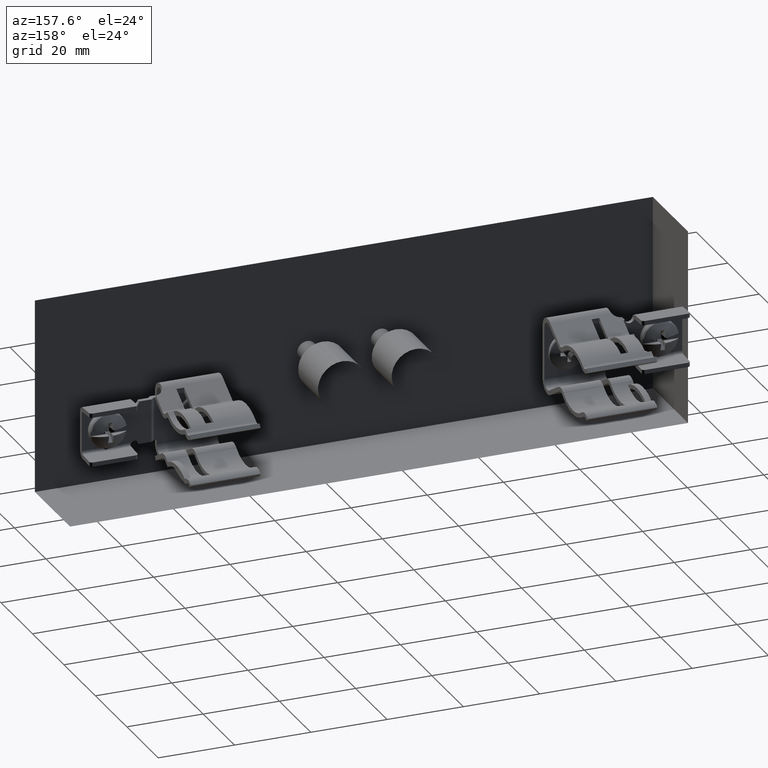
[diagram: clean part render]
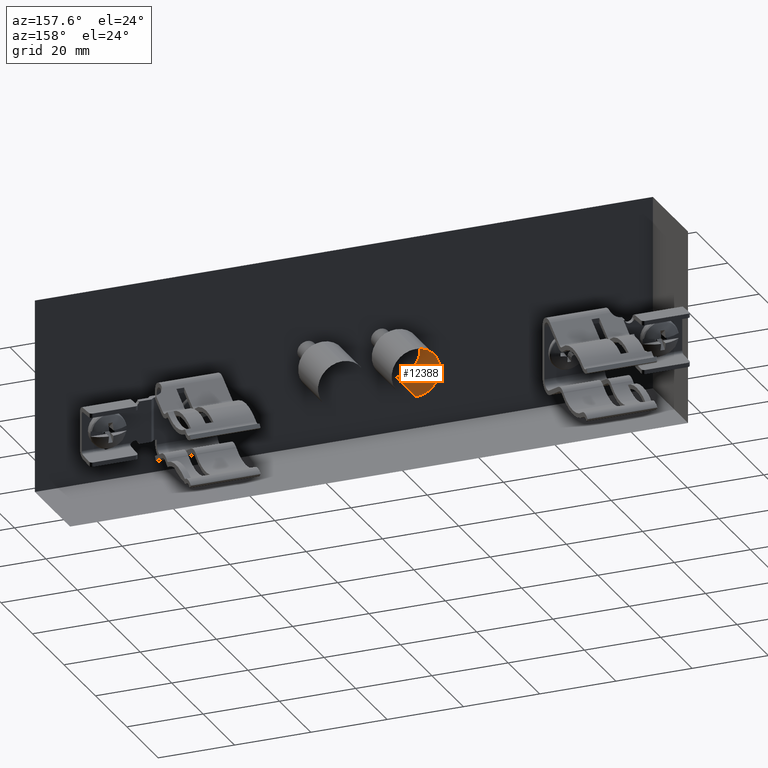
[diagram: same view with one face highlighted and labeled with its STEP entity id]
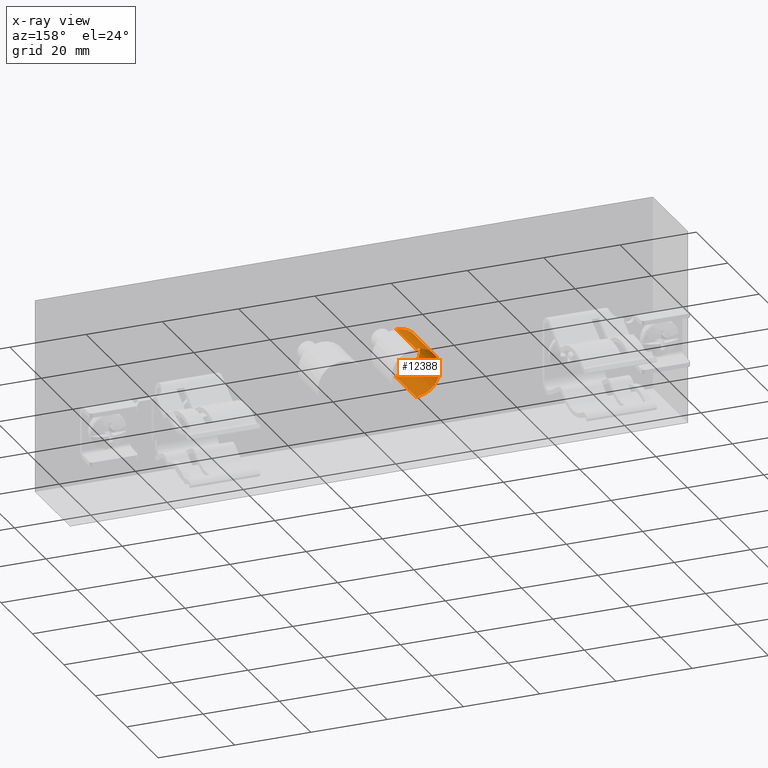
[diagram: x-ray of the same camera — body ghosted, the highlighted face saturated]
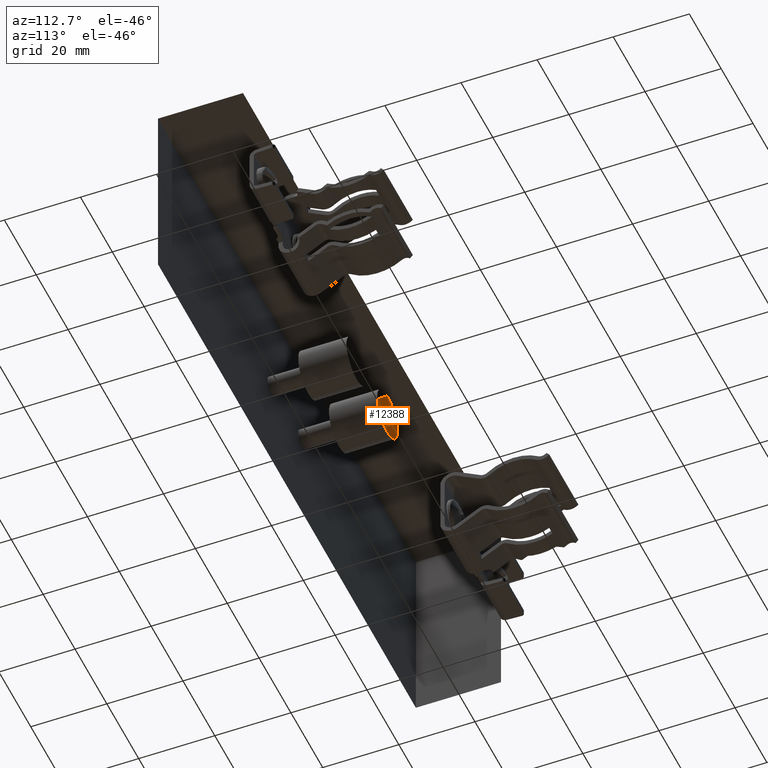
[diagram: same view with one face highlighted and labeled with its STEP entity id]
A machine part, auxiliary view. The second image highlights one B-rep face of the part: STEP entity #12388.
The next image is the same camera in x-ray: the body ghosted, the highlighted face saturated — about 0% of this face is hidden behind the body in this view.
A second angle (auxiliary view) of the same face is appended — the face is thin or edge-on in the first view.
In plain terms, the highlighted cylindrical surface (edge-blend (fillet) strip) has radius 6.35 mm, axis along (0, 1, 0).
Its self-contained STEP definition (entity closure, byte-faithful):
#151 = AXIS2_PLACEMENT_3D ( 'NONE', #13083, #6853, #5835 ) ;
#223 = DIRECTION ( 'NONE',  ( 0.0000000000000000000, 0.0000000000000000000, 1.000000000000000000 ) ) ;
#311 = LINE ( 'NONE', #4070, #11018 ) ;
#531 = CIRCLE ( 'NONE', #5211, 0.2499999999999999700 ) ;
#1923 = DIRECTION ( 'NONE',  ( 0.0000000000000000000, 1.000000000000000000, 0.0000000000000000000 ) ) ;
#2333 = DIRECTION ( 'NONE',  ( 0.0000000000000000000, 1.000000000000000000, 0.0000000000000000000 ) ) ;
#2526 = EDGE_CURVE ( 'NONE', #10018, #12334, #311, .T. ) ;
#4070 = CARTESIAN_POINT ( 'NONE',  ( 1.530000000000000000, 0.3925000000000009600, 0.2499999999999998300 ) ) ;
#4379 = ORIENTED_EDGE ( 'NONE', *, *, #2526, .T. ) ;
#5211 = AXIS2_PLACEMENT_3D ( 'NONE', #8131, #1923, #9155 ) ;
#5323 = CARTESIAN_POINT ( 'NONE',  ( 1.530000000000000000, -0.1074999999999990500, -0.2500000000000001100 ) ) ;
#5430 = VERTEX_POINT ( 'NONE', #5323 ) ;
#5563 = VECTOR ( 'NONE', #2333, 39.37007874015748100 ) ;
#5751 = CARTESIAN_POINT ( 'NONE',  ( 1.530000000000000000, 0.3925000000000009600, 0.2499999999999998300 ) ) ;
#5835 = DIRECTION ( 'NONE',  ( 0.0000000000000000000, 0.0000000000000000000, 1.000000000000000000 ) ) ;
#6360 = FACE_OUTER_BOUND ( 'NONE', #11614, .T. ) ;
#6404 = DIRECTION ( 'NONE',  ( 0.0000000000000000000, 1.000000000000000000, 0.0000000000000000000 ) ) ;
#6836 = ORIENTED_EDGE ( 'NONE', *, *, #8105, .F. ) ;
#6853 = DIRECTION ( 'NONE',  ( 0.0000000000000000000, 1.000000000000000000, 0.0000000000000000000 ) ) ;
#7294 = EDGE_CURVE ( 'NONE', #5430, #10018, #11064, .T. ) ;
#7864 = VERTEX_POINT ( 'NONE', #10772 ) ;
#8105 = EDGE_CURVE ( 'NONE', #5430, #7864, #8929, .T. ) ;
#8131 = CARTESIAN_POINT ( 'NONE',  ( 1.530000000000000000, 0.3925000000000009600, -1.530944634777068800E-016 ) ) ;
#8929 = LINE ( 'NONE', #11675, #5563 ) ;
#8990 = DIRECTION ( 'NONE',  ( 0.0000000000000000000, 1.000000000000000000, 0.0000000000000000000 ) ) ;
#9155 = DIRECTION ( 'NONE',  ( 0.0000000000000000000, 0.0000000000000000000, 1.000000000000000000 ) ) ;
#10018 = VERTEX_POINT ( 'NONE', #11630 ) ;
#10772 = CARTESIAN_POINT ( 'NONE',  ( 1.530000000000000000, 0.3925000000000009600, -0.2500000000000001100 ) ) ;
#11018 = VECTOR ( 'NONE', #8990, 39.37007874015748100 ) ;
#11064 = CIRCLE ( 'NONE', #12707, 0.2499999999999999700 ) ;
#11290 = ORIENTED_EDGE ( 'NONE', *, *, #7294, .T. ) ;
#11583 = CYLINDRICAL_SURFACE ( 'NONE', #151, 0.2499999999999999700 ) ;
#11614 = EDGE_LOOP ( 'NONE', ( #6836, #11290, #4379, #12167 ) ) ;
#11630 = CARTESIAN_POINT ( 'NONE',  ( 1.530000000000000000, -0.1074999999999990500, 0.2499999999999998300 ) ) ;
#11675 = CARTESIAN_POINT ( 'NONE',  ( 1.530000000000000000, 0.3925000000000009600, -0.2500000000000001100 ) ) ;
#12167 = ORIENTED_EDGE ( 'NONE', *, *, #13018, .F. ) ;
#12334 = VERTEX_POINT ( 'NONE', #5751 ) ;
#12388 = ADVANCED_FACE ( 'NONE', ( #6360 ), #11583, .T. ) ;
#12640 = CARTESIAN_POINT ( 'NONE',  ( 1.530000000000000000, -0.1074999999999990500, -1.530944634777068800E-016 ) ) ;
#12707 = AXIS2_PLACEMENT_3D ( 'NONE', #12640, #6404, #223 ) ;
#13018 = EDGE_CURVE ( 'NONE', #7864, #12334, #531, .T. ) ;
#13083 = CARTESIAN_POINT ( 'NONE',  ( 1.530000000000000000, 0.3925000000000009600, -1.530944634777068800E-016 ) ) ;